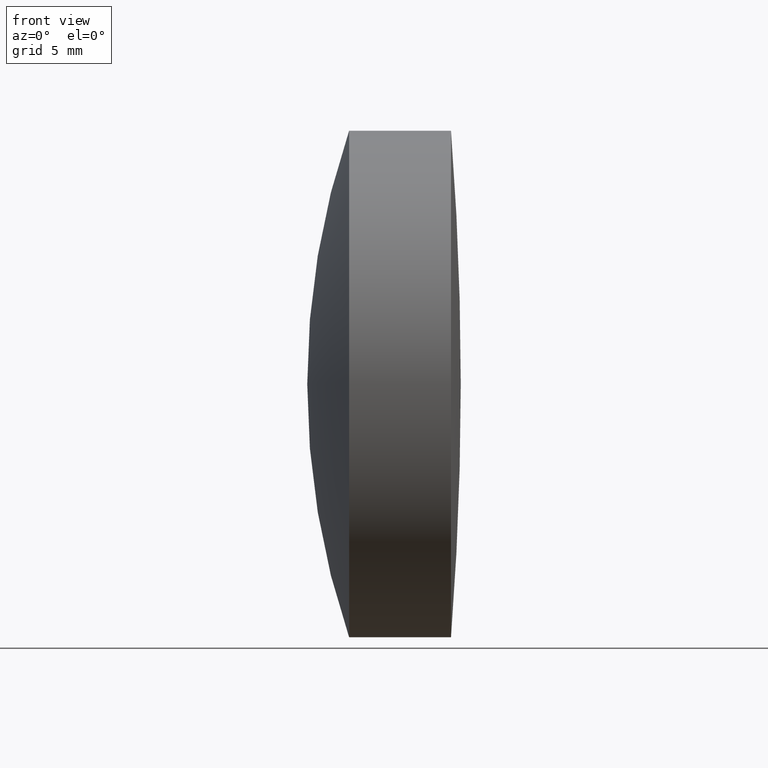
[diagram: clean part render]
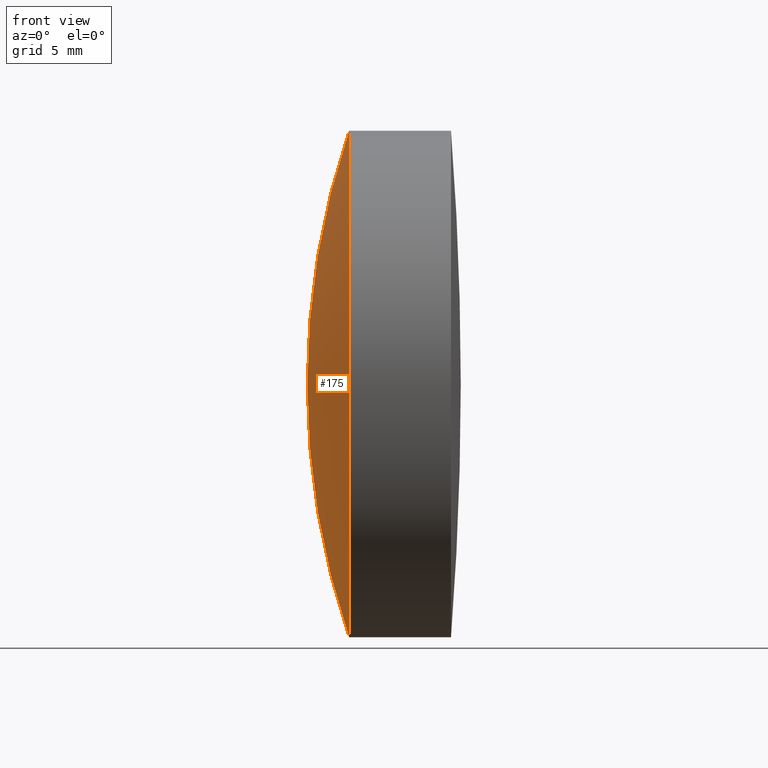
[diagram: same view with one face highlighted and labeled with its STEP entity id]
A machine part, front view. The second image highlights one B-rep face of the part: STEP entity #175.
In plain terms, the highlighted spherical surface has radius 39.48 mm.
Its self-contained STEP definition (entity closure, byte-faithful):
#13 = EDGE_LOOP ( 'NONE', ( #131, #283, #19 ) ) ;
#19 = ORIENTED_EDGE ( 'NONE', *, *, #271, .F. ) ;
#23 = CIRCLE ( 'NONE', #269, 12.70000000000000800 ) ;
#37 = FACE_OUTER_BOUND ( 'NONE', #13, .T. ) ;
#46 = AXIS2_PLACEMENT_3D ( 'NONE', #123, #174, #87 ) ;
#48 = CIRCLE ( 'NONE', #300, 39.47999999999997600 ) ;
#51 = VERTEX_POINT ( 'NONE', #229 ) ;
#59 = VERTEX_POINT ( 'NONE', #279 ) ;
#70 = EDGE_CURVE ( 'NONE', #51, #59, #23, .T. ) ;
#80 = CARTESIAN_POINT ( 'NONE',  ( 330.9589865545651700, 0.0000000000000000000, 8.575898305430526300E-015 ) ) ;
#87 = DIRECTION ( 'NONE',  ( 0.0000000000000000000, 0.0000000000000000000, -1.000000000000000000 ) ) ;
#109 = DIRECTION ( 'NONE',  ( 0.0000000000000000000, 0.0000000000000000000, 1.000000000000000000 ) ) ;
#116 = DIRECTION ( 'NONE',  ( 0.0000000000000000000, 1.224646799147353200E-016, -1.000000000000000000 ) ) ;
#122 = CARTESIAN_POINT ( 'NONE',  ( 330.9589865545651700, 0.0000000000000000000, 8.575898305430526300E-015 ) ) ;
#123 = CARTESIAN_POINT ( 'NONE',  ( 330.9589865545651700, 0.0000000000000000000, 8.575898305430526300E-015 ) ) ;
#131 = ORIENTED_EDGE ( 'NONE', *, *, #70, .T. ) ;
#148 = EDGE_CURVE ( 'NONE', #59, #284, #48, .T. ) ;
#160 = SPHERICAL_SURFACE ( 'NONE', #46, 39.47999999999997600 ) ;
#162 = CIRCLE ( 'NONE', #194, 39.47999999999997600 ) ;
#174 = DIRECTION ( 'NONE',  ( -0.0000000000000000000, -1.000000000000000000, -0.0000000000000000000 ) ) ;
#175 = ADVANCED_FACE ( 'NONE', ( #37 ), #160, .T. ) ;
#194 = AXIS2_PLACEMENT_3D ( 'NONE', #80, #272, #109 ) ;
#229 = CARTESIAN_POINT ( 'NONE',  ( 293.5774349548790400, 0.0000000000000000000, -12.69999999999999900 ) ) ;
#269 = AXIS2_PLACEMENT_3D ( 'NONE', #328, #281, #276 ) ;
#271 = EDGE_CURVE ( 'NONE', #51, #284, #162, .T. ) ;
#272 = DIRECTION ( 'NONE',  ( 0.0000000000000000000, 1.000000000000000000, -0.0000000000000000000 ) ) ;
#276 = DIRECTION ( 'NONE',  ( 0.0000000000000000000, 0.0000000000000000000, 1.000000000000000000 ) ) ;
#279 = CARTESIAN_POINT ( 'NONE',  ( 293.5774349548790400, -1.555301434917138200E-015, 12.70000000000000600 ) ) ;
#281 = DIRECTION ( 'NONE',  ( -1.000000000000000000, -0.0000000000000000000, -0.0000000000000000000 ) ) ;
#283 = ORIENTED_EDGE ( 'NONE', *, *, #148, .T. ) ;
#284 = VERTEX_POINT ( 'NONE', #320 ) ;
#300 = AXIS2_PLACEMENT_3D ( 'NONE', #122, #301, #116 ) ;
#301 = DIRECTION ( 'NONE',  ( 0.0000000000000000000, -1.000000000000000000, -1.224646799147353200E-016 ) ) ;
#320 = CARTESIAN_POINT ( 'NONE',  ( 291.4789865545652100, 0.0000000000000000000, 6.158445523913652300E-015 ) ) ;
#328 = CARTESIAN_POINT ( 'NONE',  ( 293.5774349548790400, 0.0000000000000000000, 0.0000000000000000000 ) ) ;